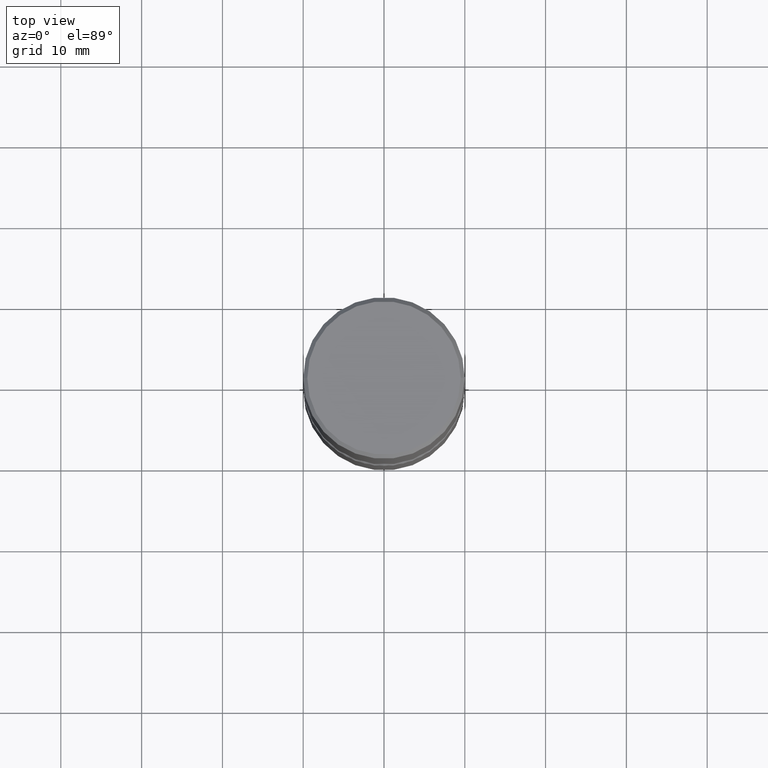
[diagram: clean part render]
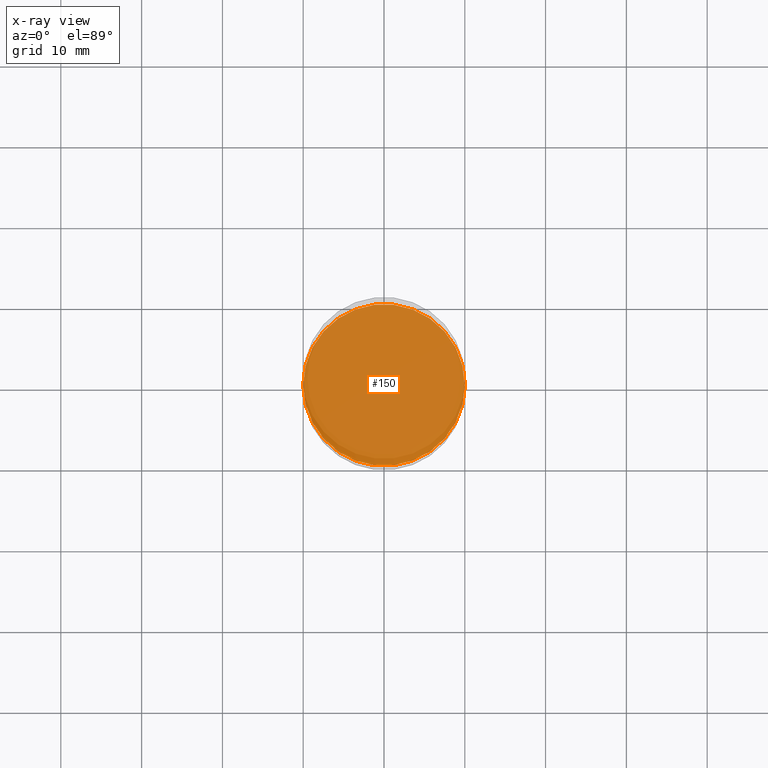
[diagram: x-ray — body ghosted, one internal face saturated and labeled with its STEP entity id]
A machine part, top view, then the same camera in x-ray: the body is ghosted and one INTERNAL B-rep face — a face not visible from any outside direction — is saturated and labeled: STEP entity #150.
In plain terms, the highlighted planar face has unit normal (0, -0, -1).
Its self-contained STEP definition (entity closure, byte-faithful):
#25 = CIRCLE ( 'NONE', #187, 0.3937000000000007160 ) ;
#70 = VERTEX_POINT ( 'NONE', #457 ) ;
#89 = AXIS2_PLACEMENT_3D ( 'NONE', #109, #279, #408 ) ;
#109 = CARTESIAN_POINT ( 'NONE',  ( 4.910012269058516525E-29, -7.010196232129267410E-15, -2.007800000000000029 ) ) ;
#142 = CIRCLE ( 'NONE', #89, 0.3937000000000007160 ) ;
#145 = VERTEX_POINT ( 'NONE', #479 ) ;
#150 = ADVANCED_FACE ( 'NONE', ( #259 ), #177, .F. ) ;
#177 = PLANE ( 'NONE',  #506 ) ;
#187 = AXIS2_PLACEMENT_3D ( 'NONE', #551, #333, #544 ) ;
#216 = DIRECTION ( 'NONE',  ( 2.438088387897960049E-29, -3.491481338843145188E-15, -1.000000000000000000 ) ) ;
#259 = FACE_OUTER_BOUND ( 'NONE', #271, .T. ) ;
#261 = CARTESIAN_POINT ( 'NONE',  ( 6.855736476519530636E-29, -4.223808423300667969E-15, -2.007800000000000029 ) ) ;
#271 = EDGE_LOOP ( 'NONE', ( #409, #554 ) ) ;
#279 = DIRECTION ( 'NONE',  ( -2.445468806185136597E-29, 3.491481338843145583E-15, 1.000000000000000000 ) ) ;
#333 = DIRECTION ( 'NONE',  ( -2.445468806185136597E-29, 3.491481338843145583E-15, 1.000000000000000000 ) ) ;
#340 = DIRECTION ( 'NONE',  ( -1.000000000000000000, 6.982962677686265922E-15, -4.876176775795935793E-29 ) ) ;
#384 = EDGE_CURVE ( 'NONE', #70, #145, #142, .T. ) ;
#408 = DIRECTION ( 'NONE',  ( 1.000000000000000000, -6.982962677686268288E-15, 0.000000000000000000 ) ) ;
#409 = ORIENTED_EDGE ( 'NONE', *, *, #384, .T. ) ;
#457 = CARTESIAN_POINT ( 'NONE',  ( 0.3937000000000007160, -9.759388638334355360E-15, -2.007800000000000029 ) ) ;
#479 = CARTESIAN_POINT ( 'NONE',  ( -0.3937000000000007160, -6.412248150845988194E-15, -2.007800000000000029 ) ) ;
#506 = AXIS2_PLACEMENT_3D ( 'NONE', #261, #216, #340 ) ;
#512 = EDGE_CURVE ( 'NONE', #145, #70, #25, .T. ) ;
#544 = DIRECTION ( 'NONE',  ( 1.000000000000000000, -6.982962677686268288E-15, 0.000000000000000000 ) ) ;
#551 = CARTESIAN_POINT ( 'NONE',  ( 4.910012269058516525E-29, -7.010196232129267410E-15, -2.007800000000000029 ) ) ;
#554 = ORIENTED_EDGE ( 'NONE', *, *, #512, .T. ) ;